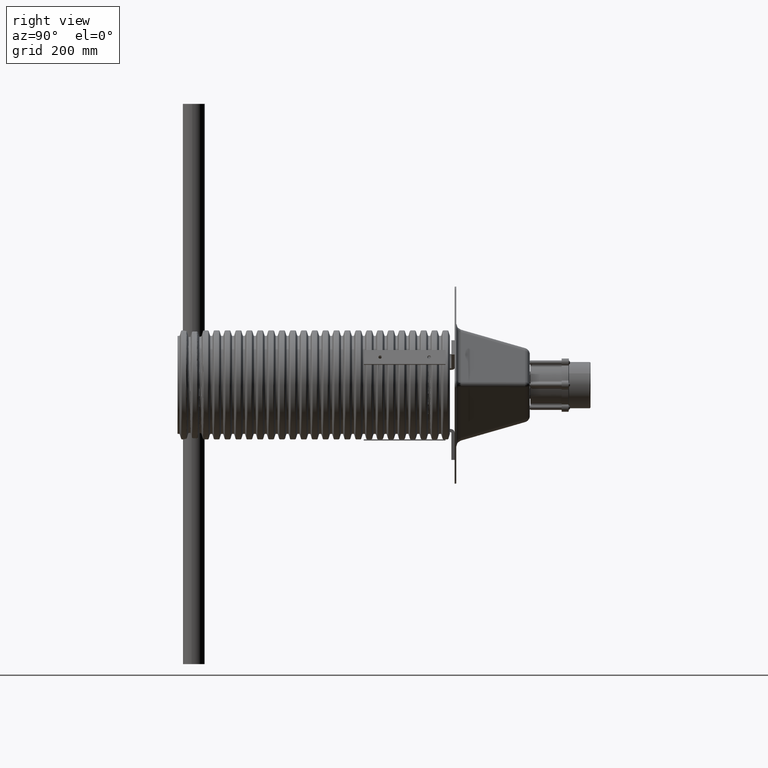
[diagram: clean part render]
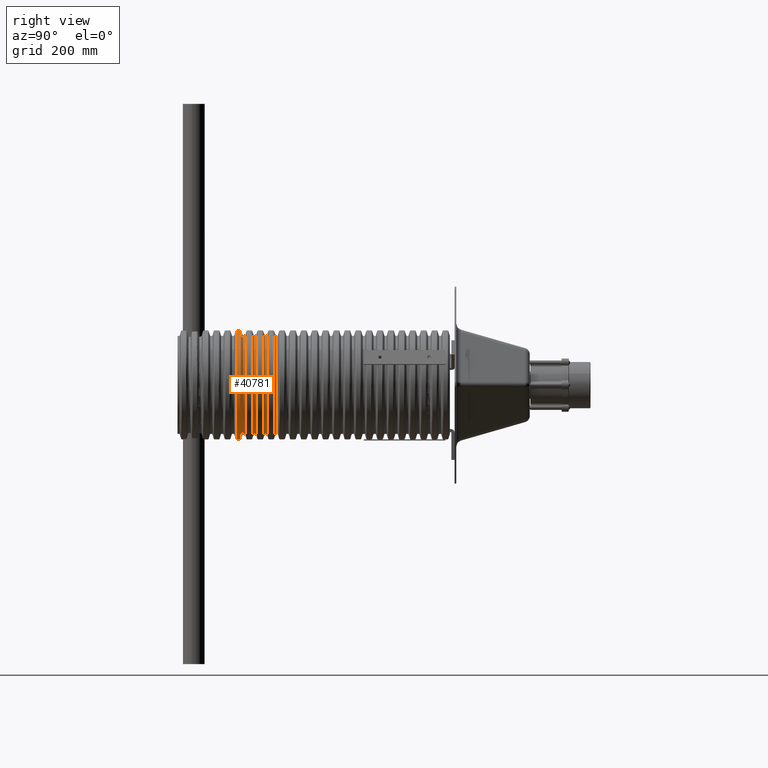
[diagram: same view with one face highlighted and labeled with its STEP entity id]
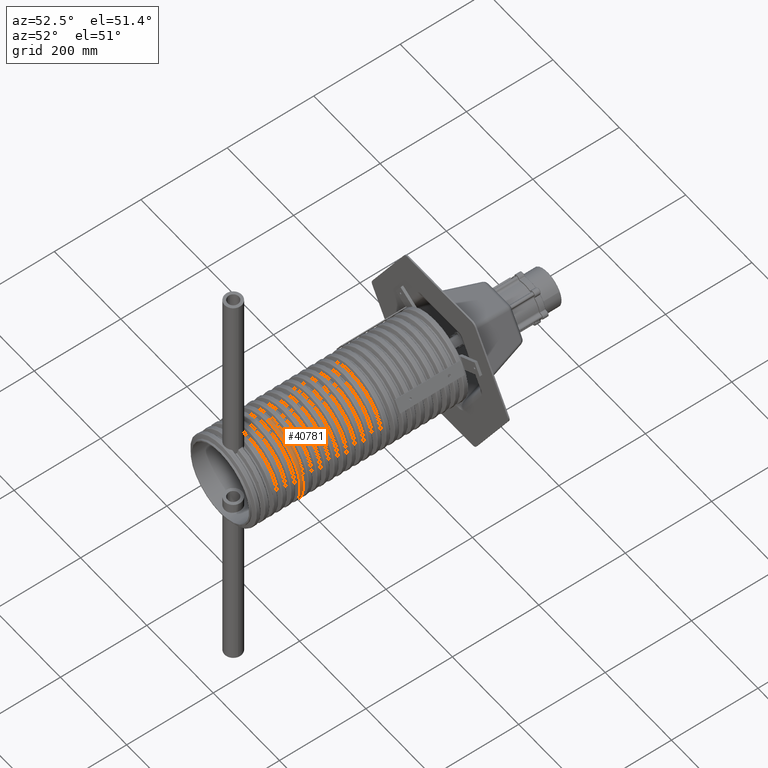
[diagram: same view with one face highlighted and labeled with its STEP entity id]
A machine part, right view. The second image highlights one B-rep face of the part: STEP entity #40781.
A second angle (auxiliary view) of the same face is appended — the face is thin or edge-on in the first view.
In plain terms, the highlighted cylindrical surface (partial cylindrical patch) has radius 100 mm, axis along (0, 1, 0).
Its self-contained STEP definition (entity closure, byte-faithful):
#1836 = CARTESIAN_POINT ( 'NONE',  ( 0.0000000000000000000, -384.4880613009359536, 0.0000000000000000000 ) ) ;
#2651 = CYLINDRICAL_SURFACE ( 'NONE', #24224, 100.0000000000039790 ) ;
#3298 = EDGE_CURVE ( 'NONE', #34684, #29365, #42785, .T. ) ;
#5421 = DIRECTION ( 'NONE',  ( 0.0000000000000000000, 0.0000000000000000000, 1.000000000000000000 ) ) ;
#5977 = ORIENTED_EDGE ( 'NONE', *, *, #12076, .F. ) ;
#5991 = CARTESIAN_POINT ( 'NONE',  ( 0.0000000000000000000, 0.0000000000000000000, 100.0000000000039790 ) ) ;
#6322 = EDGE_CURVE ( 'NONE', #34739, #29365, #20621, .T. ) ;
#7220 = AXIS2_PLACEMENT_3D ( 'NONE', #14439, #39455, #18009 ) ;
#9165 = CARTESIAN_POINT ( 'NONE',  ( 0.0000000000000000000, 0.0000000000000000000, 0.0000000000000000000 ) ) ;
#11371 = AXIS2_PLACEMENT_3D ( 'NONE', #1836, #26808, #5421 ) ;
#11886 = ORIENTED_EDGE ( 'NONE', *, *, #6322, .F. ) ;
#12076 = EDGE_CURVE ( 'NONE', #24036, #34739, #33457, .T. ) ;
#13091 = VECTOR ( 'NONE', #22131, 1000.000000000000000 ) ;
#14439 = CARTESIAN_POINT ( 'NONE',  ( 0.0000000000000000000, -391.5119386984405878, 0.0000000000000000000 ) ) ;
#14501 = CARTESIAN_POINT ( 'NONE',  ( 0.0000000000000000000, -384.4880613009359536, 100.0000000000039790 ) ) ;
#16549 = CARTESIAN_POINT ( 'NONE',  ( 0.0000000000000000000, -391.5119386984405878, 100.0000000000040643 ) ) ;
#16647 = VECTOR ( 'NONE', #27394, 1000.000000000000000 ) ;
#18009 = DIRECTION ( 'NONE',  ( 0.0000000000000000000, 0.0000000000000000000, 1.000000000000000000 ) ) ;
#18503 = CARTESIAN_POINT ( 'NONE',  ( 1.224646799147401969E-14, 0.0000000000000000000, -100.0000000000039790 ) ) ;
#18658 = CIRCLE ( 'NONE', #7220, 100.0000000000039648 ) ;
#19610 = ORIENTED_EDGE ( 'NONE', *, *, #3298, .T. ) ;
#20621 = CIRCLE ( 'NONE', #11371, 100.0000000000039790 ) ;
#22131 = DIRECTION ( 'NONE',  ( -0.0000000000000000000, 1.000000000000000000, -0.0000000000000000000 ) ) ;
#22830 = FACE_OUTER_BOUND ( 'NONE', #29093, .T. ) ;
#23425 = DIRECTION ( 'NONE',  ( 0.0000000000000000000, 0.0000000000000000000, 1.000000000000000000 ) ) ;
#24036 = VERTEX_POINT ( 'NONE', #16549 ) ;
#24224 = AXIS2_PLACEMENT_3D ( 'NONE', #9165, #34210, #23425 ) ;
#26808 = DIRECTION ( 'NONE',  ( -0.0000000000000000000, 1.000000000000000000, -0.0000000000000000000 ) ) ;
#27394 = DIRECTION ( 'NONE',  ( -0.0000000000000000000, 1.000000000000000000, -0.0000000000000000000 ) ) ;
#29093 = EDGE_LOOP ( 'NONE', ( #43822, #19610, #11886, #5977 ) ) ;
#29365 = VERTEX_POINT ( 'NONE', #39266 ) ;
#33457 = LINE ( 'NONE', #5991, #16647 ) ;
#34210 = DIRECTION ( 'NONE',  ( -0.0000000000000000000, 1.000000000000000000, -0.0000000000000000000 ) ) ;
#34684 = VERTEX_POINT ( 'NONE', #39196 ) ;
#34739 = VERTEX_POINT ( 'NONE', #14501 ) ;
#39196 = CARTESIAN_POINT ( 'NONE',  ( 1.224646799147402757E-14, -391.5119386984405878, -100.0000000000040643 ) ) ;
#39266 = CARTESIAN_POINT ( 'NONE',  ( 1.224646799147401969E-14, -384.4880613009359536, -100.0000000000039790 ) ) ;
#39455 = DIRECTION ( 'NONE',  ( -0.0000000000000000000, 1.000000000000000000, -0.0000000000000000000 ) ) ;
#40781 = ADVANCED_FACE ( 'NONE', ( #22830 ), #2651, .T. ) ;
#42785 = LINE ( 'NONE', #18503, #13091 ) ;
#43414 = EDGE_CURVE ( 'NONE', #24036, #34684, #18658, .T. ) ;
#43822 = ORIENTED_EDGE ( 'NONE', *, *, #43414, .T. ) ;